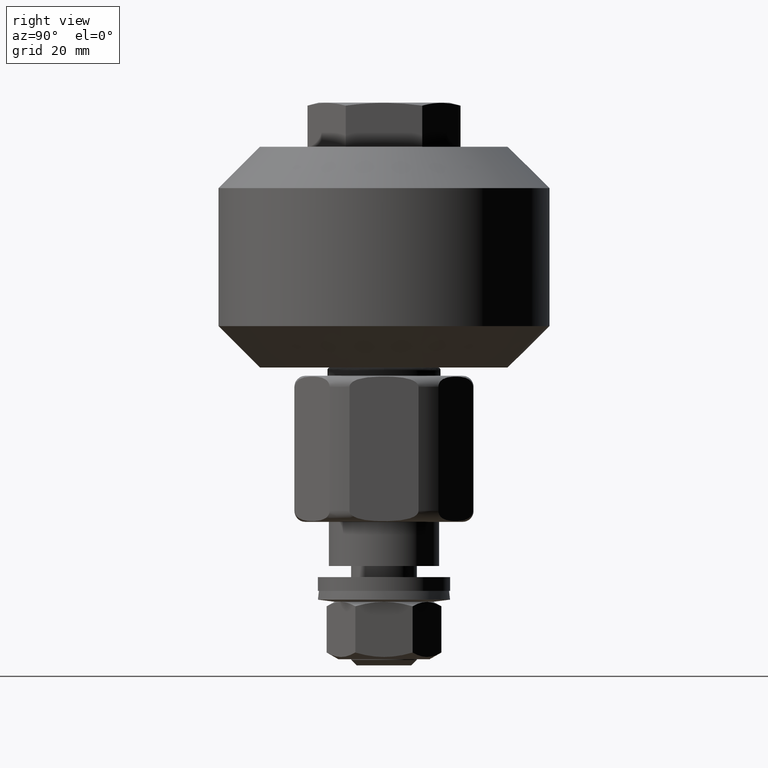
[diagram: clean part render]
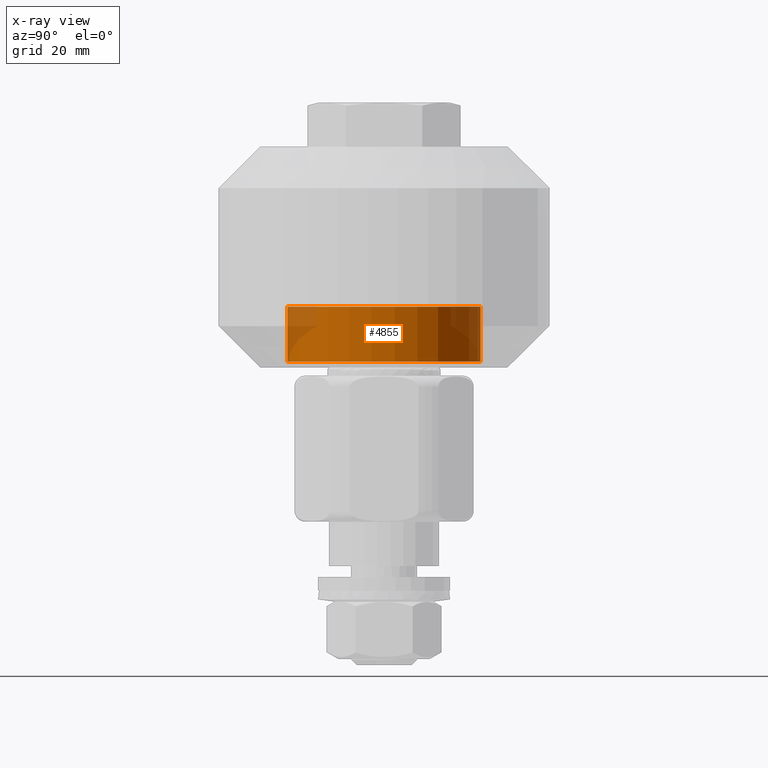
[diagram: x-ray — body ghosted, one internal face saturated and labeled with its STEP entity id]
A machine part, right view, then the same camera in x-ray: the body is ghosted and one INTERNAL B-rep face — a face not visible from any outside direction — is saturated and labeled: STEP entity #4855.
In plain terms, the highlighted cylindrical surface (bore or boss wall) has radius 17.5 mm, axis along (-0, -0, 1).
Its self-contained STEP definition (entity closure, byte-faithful):
#222=CYLINDRICAL_SURFACE('',#5365,17.5);
#467=FACE_OUTER_BOUND('',#743,.T.);
#743=EDGE_LOOP('',(#3372,#3373,#3374,#3375,#3376));
#1034=CIRCLE('',#5361,17.5);
#1035=CIRCLE('',#5362,17.5);
#1037=CIRCLE('',#5366,17.5);
#1309=LINE('',#7418,#1599);
#1599=VECTOR('',#6001,17.5);
#2025=VERTEX_POINT('',#7407);
#2026=VERTEX_POINT('',#7409);
#2028=VERTEX_POINT('',#7416);
#2559=EDGE_CURVE('',#2025,#2026,#1034,.T.);
#2560=EDGE_CURVE('',#2026,#2025,#1035,.T.);
#2562=EDGE_CURVE('',#2028,#2028,#1037,.T.);
#2563=EDGE_CURVE('',#2028,#2026,#1309,.T.);
#3372=ORIENTED_EDGE('',*,*,#2562,.T.);
#3373=ORIENTED_EDGE('',*,*,#2563,.T.);
#3374=ORIENTED_EDGE('',*,*,#2559,.F.);
#3375=ORIENTED_EDGE('',*,*,#2560,.F.);
#3376=ORIENTED_EDGE('',*,*,#2563,.F.);
#4855=ADVANCED_FACE('',(#467),#222,.F.);
#5361=AXIS2_PLACEMENT_3D('',#7410,#5989,#5990);
#5362=AXIS2_PLACEMENT_3D('',#7411,#5991,#5992);
#5365=AXIS2_PLACEMENT_3D('',#7415,#5997,#5998);
#5366=AXIS2_PLACEMENT_3D('',#7417,#5999,#6000);
#5989=DIRECTION('center_axis',(1.,0.,0.));
#5990=DIRECTION('ref_axis',(0.,-1.,0.));
#5991=DIRECTION('center_axis',(1.,0.,0.));
#5992=DIRECTION('ref_axis',(0.,-1.,0.));
#5997=DIRECTION('center_axis',(1.,0.,0.));
#5998=DIRECTION('ref_axis',(0.,1.,0.));
#5999=DIRECTION('center_axis',(1.,0.,0.));
#6000=DIRECTION('ref_axis',(0.,1.,0.));
#6001=DIRECTION('',(-1.,0.,0.));
#7407=CARTESIAN_POINT('',(-19.,17.5,2.14313189850787E-15));
#7409=CARTESIAN_POINT('',(-19.,-17.5,-2.14313189850787E-15));
#7410=CARTESIAN_POINT('Origin',(-19.,0.,0.));
#7411=CARTESIAN_POINT('Origin',(-19.,0.,0.));
#7415=CARTESIAN_POINT('Origin',(-14.5,0.,0.));
#7416=CARTESIAN_POINT('',(-9.,-17.5,-2.14313189850787E-15));
#7417=CARTESIAN_POINT('Origin',(-9.,0.,0.));
#7418=CARTESIAN_POINT('',(-14.5,-17.5,-2.14313189850787E-15));